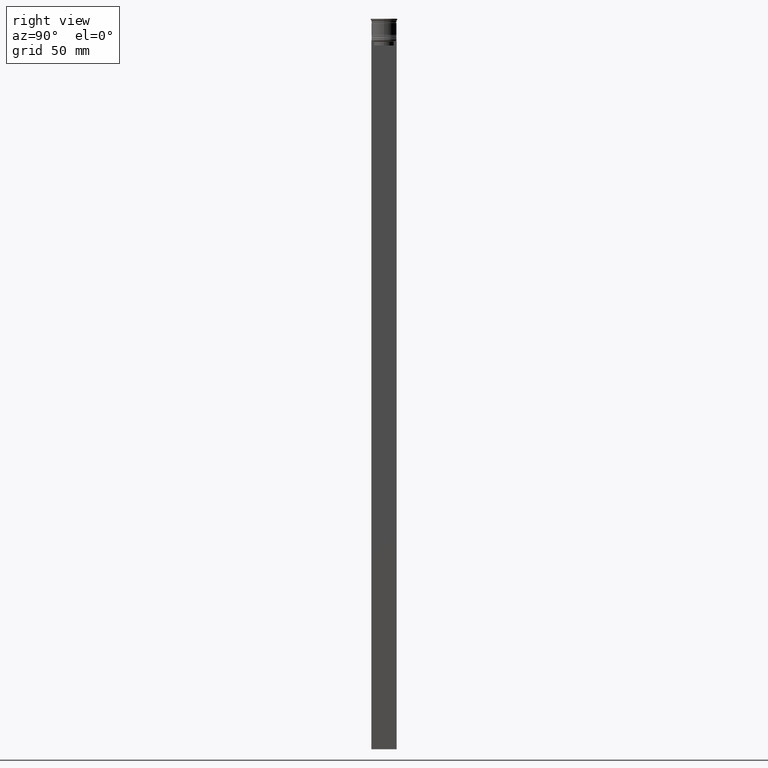
[diagram: clean part render]
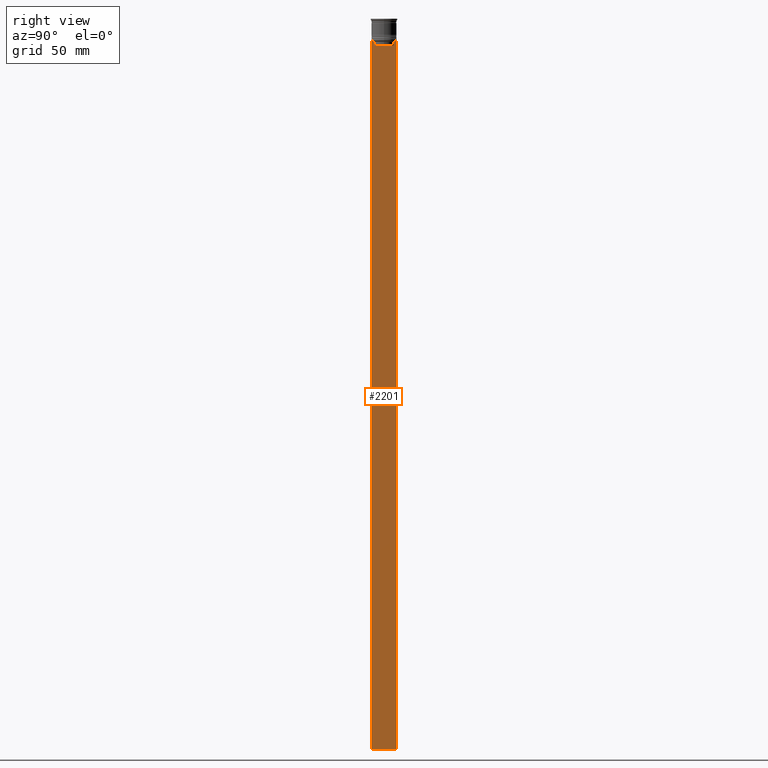
[diagram: same view with one face highlighted and labeled with its STEP entity id]
A machine part, right view. The second image highlights one B-rep face of the part: STEP entity #2201.
In plain terms, the highlighted planar face has unit normal (-1, 0, 0).
Its self-contained STEP definition (entity closure, byte-faithful):
#11 = ORIENTED_EDGE ( 'NONE', *, *, #2263, .T. ) ;
#33 = CARTESIAN_POINT ( 'NONE',  ( 0.5000000000000001110, -8.000000000000003553, 2.031219541881394530 ) ) ;
#72 = LINE ( 'NONE', #2375, #686 ) ;
#81 = EDGE_CURVE ( 'NONE', #1586, #1091, #107, .T. ) ;
#107 = LINE ( 'NONE', #2232, #809 ) ;
#108 = CARTESIAN_POINT ( 'NONE',  ( 0.5000000000000001110, -8.000000000000003553, -464.0000000000000000 ) ) ;
#114 = ORIENTED_EDGE ( 'NONE', *, *, #857, .T. ) ;
#151 = B_SPLINE_CURVE_WITH_KNOTS ( 'NONE', 3,
 ( #507, #874, #1688, #1103 ),
 .UNSPECIFIED., .F., .F.,
 ( 4, 4 ),
 ( 0.01172465562756038263, 0.01243276816391822651 ),
 .UNSPECIFIED. ) ;
#171 = VECTOR ( 'NONE', #1115, 1000.000000000000000 ) ;
#190 = EDGE_CURVE ( 'NONE', #1882, #1618, #151, .T. ) ;
#207 = VERTEX_POINT ( 'NONE', #677 ) ;
#229 = DIRECTION ( 'NONE',  ( 0.000000000000000000, -1.000000000000000000, 0.000000000000000000 ) ) ;
#234 = CARTESIAN_POINT ( 'NONE',  ( 0.5000000000000001110, 6.380438856379708312, 0.000000000000000000 ) ) ;
#245 = DIRECTION ( 'NONE',  ( 0.000000000000000000, 0.000000000000000000, 1.000000000000000000 ) ) ;
#263 = CARTESIAN_POINT ( 'NONE',  ( 0.5000000000000001110, -8.000000000000003553, -14.00000000000000178 ) ) ;
#272 = VERTEX_POINT ( 'NONE', #363 ) ;
#297 = VERTEX_POINT ( 'NONE', #2483 ) ;
#363 = CARTESIAN_POINT ( 'NONE',  ( 0.5000000000000001110, -7.884161337770806632, -14.00000000000000178 ) ) ;
#422 = VECTOR ( 'NONE', #1008, 1000.000000000000000 ) ;
#507 = CARTESIAN_POINT ( 'NONE',  ( 0.5000000000000001110, 6.881860213634098500, -14.00000000000000178 ) ) ;
#533 = ORIENTED_EDGE ( 'NONE', *, *, #190, .T. ) ;
#555 = ORIENTED_EDGE ( 'NONE', *, *, #1049, .T. ) ;
#597 = LINE ( 'NONE', #234, #422 ) ;
#647 = VECTOR ( 'NONE', #1201, 1000.000000000000000 ) ;
#675 = EDGE_CURVE ( 'NONE', #297, #272, #2248, .T. ) ;
#677 = CARTESIAN_POINT ( 'NONE',  ( 0.5000000000000001110, -8.000000000000003553, -464.0000000000000000 ) ) ;
#686 = VECTOR ( 'NONE', #2148, 1000.000000000000000 ) ;
#728 = VECTOR ( 'NONE', #847, 1000.000000000000000 ) ;
#737 = CARTESIAN_POINT ( 'NONE',  ( 0.5000000000000001110, 7.999999999999996447, -464.0000000000000000 ) ) ;
#795 = CARTESIAN_POINT ( 'NONE',  ( 0.5000000000000001110, 7.999999999999996447, 2.031219541881394530 ) ) ;
#807 = FACE_OUTER_BOUND ( 'NONE', #2195, .T. ) ;
#809 = VECTOR ( 'NONE', #1869, 1000.000000000000000 ) ;
#836 = EDGE_CURVE ( 'NONE', #272, #2250, #1716, .T. ) ;
#847 = DIRECTION ( 'NONE',  ( 0.000000000000000000, 0.000000000000000000, -1.000000000000000000 ) ) ;
#857 = EDGE_CURVE ( 'NONE', #2309, #2243, #2104, .T. ) ;
#874 = CARTESIAN_POINT ( 'NONE',  ( 0.5000000000000001110, 6.714736947114692711, -14.16668390704818847 ) ) ;
#875 = DIRECTION ( 'NONE',  ( 0.000000000000000000, 1.000000000000000000, 0.000000000000000000 ) ) ;
#915 = DIRECTION ( 'NONE',  ( 0.000000000000000000, -1.000000000000000000, 0.000000000000000000 ) ) ;
#1008 = DIRECTION ( 'NONE',  ( 0.000000000000000000, 0.000000000000000000, -1.000000000000000000 ) ) ;
#1020 = CARTESIAN_POINT ( 'NONE',  ( 0.5000000000000001110, -6.547597841511247019, -14.33335192438652150 ) ) ;
#1038 = ORIENTED_EDGE ( 'NONE', *, *, #1479, .T. ) ;
#1049 = EDGE_CURVE ( 'NONE', #1091, #1788, #1666, .T. ) ;
#1068 = CARTESIAN_POINT ( 'NONE',  ( 0.5000000000000001110, -6.380438856379708312, -17.00000000000000000 ) ) ;
#1091 = VERTEX_POINT ( 'NONE', #1068 ) ;
#1103 = CARTESIAN_POINT ( 'NONE',  ( 0.5000000000000001110, 6.380438856379708312, -14.50000000000000000 ) ) ;
#1113 = EDGE_CURVE ( 'NONE', #207, #2412, #1834, .T. ) ;
#1115 = DIRECTION ( 'NONE',  ( -0.000000000000000000, -0.000000000000000000, 1.000000000000000000 ) ) ;
#1132 = CARTESIAN_POINT ( 'NONE',  ( 0.5000000000000001110, 7.999999999999996447, -14.00000000000000178 ) ) ;
#1176 = VECTOR ( 'NONE', #229, 1000.000000000000000 ) ;
#1196 = DIRECTION ( 'NONE',  ( -1.000000000000000000, 0.000000000000000000, 0.000000000000000000 ) ) ;
#1201 = DIRECTION ( 'NONE',  ( 0.000000000000000000, -1.000000000000000000, 0.000000000000000000 ) ) ;
#1358 = ORIENTED_EDGE ( 'NONE', *, *, #81, .T. ) ;
#1442 = ORIENTED_EDGE ( 'NONE', *, *, #2249, .F. ) ;
#1443 = EDGE_CURVE ( 'NONE', #1788, #297, #1541, .T. ) ;
#1479 = EDGE_CURVE ( 'NONE', #2243, #1882, #72, .T. ) ;
#1532 = CARTESIAN_POINT ( 'NONE',  ( 0.5000000000000001110, 7.884161337770806632, -14.00000000000000178 ) ) ;
#1541 = B_SPLINE_CURVE_WITH_KNOTS ( 'NONE', 3,
 ( #1975, #1020, #2185, #2199 ),
 .UNSPECIFIED., .F., .F.,
 ( 4, 4 ),
 ( 0.02996184199614751464, 0.03067452609193705923 ),
 .UNSPECIFIED. ) ;
#1563 = DIRECTION ( 'NONE',  ( 0.000000000000000000, 0.000000000000000000, -1.000000000000000000 ) ) ;
#1586 = VERTEX_POINT ( 'NONE', #2247 ) ;
#1590 = VECTOR ( 'NONE', #1563, 1000.000000000000000 ) ;
#1613 = CARTESIAN_POINT ( 'NONE',  ( 0.5000000000000001110, 6.881860213634098500, -14.00000000000000178 ) ) ;
#1618 = VERTEX_POINT ( 'NONE', #1642 ) ;
#1642 = CARTESIAN_POINT ( 'NONE',  ( 0.5000000000000001110, 6.380438856379708312, -14.50000000000000000 ) ) ;
#1657 = CARTESIAN_POINT ( 'NONE',  ( 0.5000000000000001110, -8.000000000000003553, -14.00000000000000178 ) ) ;
#1666 = LINE ( 'NONE', #2245, #171 ) ;
#1688 = CARTESIAN_POINT ( 'NONE',  ( 0.5000000000000001110, 6.547597841304911626, -14.33335192459222718 ) ) ;
#1716 = LINE ( 'NONE', #1953, #1176 ) ;
#1753 = PLANE ( 'NONE',  #2470 ) ;
#1769 = LINE ( 'NONE', #33, #728 ) ;
#1788 = VERTEX_POINT ( 'NONE', #2458 ) ;
#1834 = LINE ( 'NONE', #108, #1901 ) ;
#1869 = DIRECTION ( 'NONE',  ( 0.000000000000000000, -1.000000000000000000, 0.000000000000000000 ) ) ;
#1877 = ORIENTED_EDGE ( 'NONE', *, *, #1914, .T. ) ;
#1882 = VERTEX_POINT ( 'NONE', #1613 ) ;
#1901 = VECTOR ( 'NONE', #875, 1000.000000000000000 ) ;
#1914 = EDGE_CURVE ( 'NONE', #2250, #207, #1769, .T. ) ;
#1942 = CARTESIAN_POINT ( 'NONE',  ( 0.5000000000000001110, -8.000000000000003553, 2.031219541881394530 ) ) ;
#1947 = ORIENTED_EDGE ( 'NONE', *, *, #1443, .T. ) ;
#1953 = CARTESIAN_POINT ( 'NONE',  ( 0.5000000000000001110, -8.000000000000003553, -14.00000000000000178 ) ) ;
#1975 = CARTESIAN_POINT ( 'NONE',  ( 0.5000000000000001110, -6.380438856379708312, -14.50000000000000000 ) ) ;
#2031 = ORIENTED_EDGE ( 'NONE', *, *, #675, .T. ) ;
#2038 = ORIENTED_EDGE ( 'NONE', *, *, #836, .T. ) ;
#2053 = VECTOR ( 'NONE', #915, 1000.000000000000000 ) ;
#2104 = LINE ( 'NONE', #263, #647 ) ;
#2110 = ORIENTED_EDGE ( 'NONE', *, *, #1113, .T. ) ;
#2123 = LINE ( 'NONE', #795, #1590 ) ;
#2148 = DIRECTION ( 'NONE',  ( 0.000000000000000000, -1.000000000000000000, 0.000000000000000000 ) ) ;
#2185 = CARTESIAN_POINT ( 'NONE',  ( 0.5000000000000001110, -6.714736947305993908, -14.16668390685738821 ) ) ;
#2195 = EDGE_LOOP ( 'NONE', ( #1038, #533, #11, #1358, #555, #1947, #2031, #2038, #1877, #2110, #1442, #114 ) ) ;
#2199 = CARTESIAN_POINT ( 'NONE',  ( 0.5000000000000001110, -6.881860213634098500, -14.00000000000000178 ) ) ;
#2201 = ADVANCED_FACE ( 'NONE', ( #807 ), #1753, .F. ) ;
#2232 = CARTESIAN_POINT ( 'NONE',  ( 0.5000000000000001110, 6.399999999999999467, -17.00000000000000000 ) ) ;
#2243 = VERTEX_POINT ( 'NONE', #1532 ) ;
#2245 = CARTESIAN_POINT ( 'NONE',  ( 0.5000000000000001110, -6.380438856379708312, 0.000000000000000000 ) ) ;
#2247 = CARTESIAN_POINT ( 'NONE',  ( 0.5000000000000001110, 6.380438856379708312, -17.00000000000000000 ) ) ;
#2248 = LINE ( 'NONE', #1657, #2053 ) ;
#2249 = EDGE_CURVE ( 'NONE', #2309, #2412, #2123, .T. ) ;
#2250 = VERTEX_POINT ( 'NONE', #2334 ) ;
#2263 = EDGE_CURVE ( 'NONE', #1618, #1586, #597, .T. ) ;
#2309 = VERTEX_POINT ( 'NONE', #1132 ) ;
#2334 = CARTESIAN_POINT ( 'NONE',  ( 0.5000000000000001110, -8.000000000000003553, -14.00000000000000178 ) ) ;
#2375 = CARTESIAN_POINT ( 'NONE',  ( 0.5000000000000001110, -8.000000000000003553, -14.00000000000000178 ) ) ;
#2412 = VERTEX_POINT ( 'NONE', #737 ) ;
#2458 = CARTESIAN_POINT ( 'NONE',  ( 0.5000000000000001110, -6.380438856379708312, -14.50000000000000000 ) ) ;
#2470 = AXIS2_PLACEMENT_3D ( 'NONE', #1942, #1196, #245 ) ;
#2483 = CARTESIAN_POINT ( 'NONE',  ( 0.5000000000000001110, -6.881860213634098500, -14.00000000000000178 ) ) ;